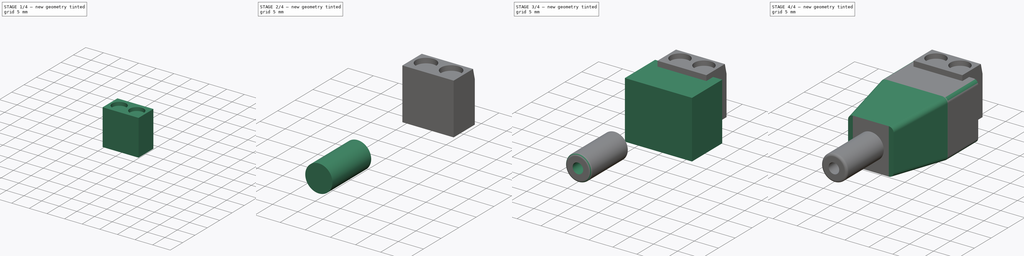
[diagram: build sequence overview — one tinted view per stage of 4, left to right]
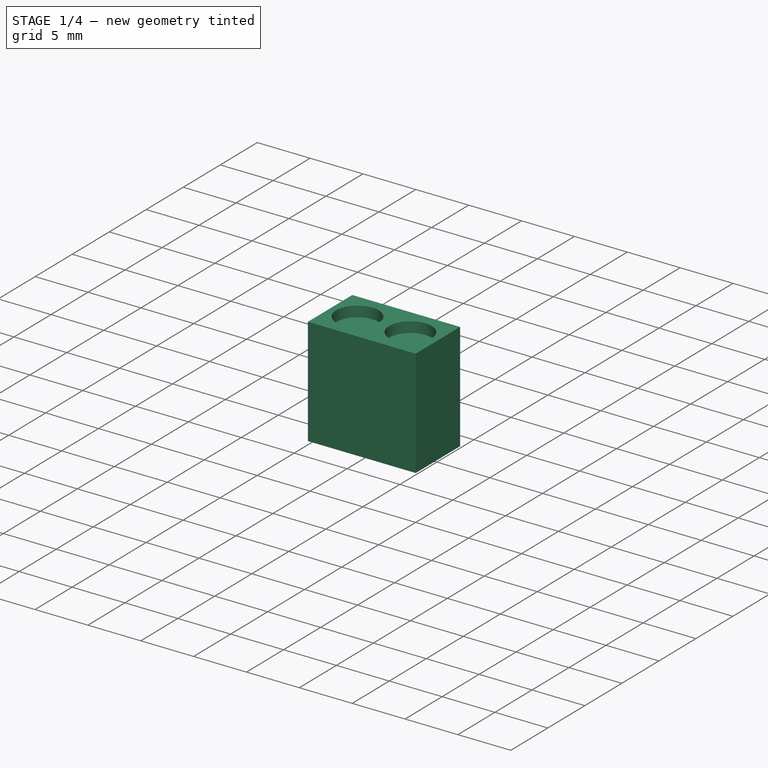
[diagram: stage 1 of 4 — iso view after this stage's code; geometry added in this stage tinted green]
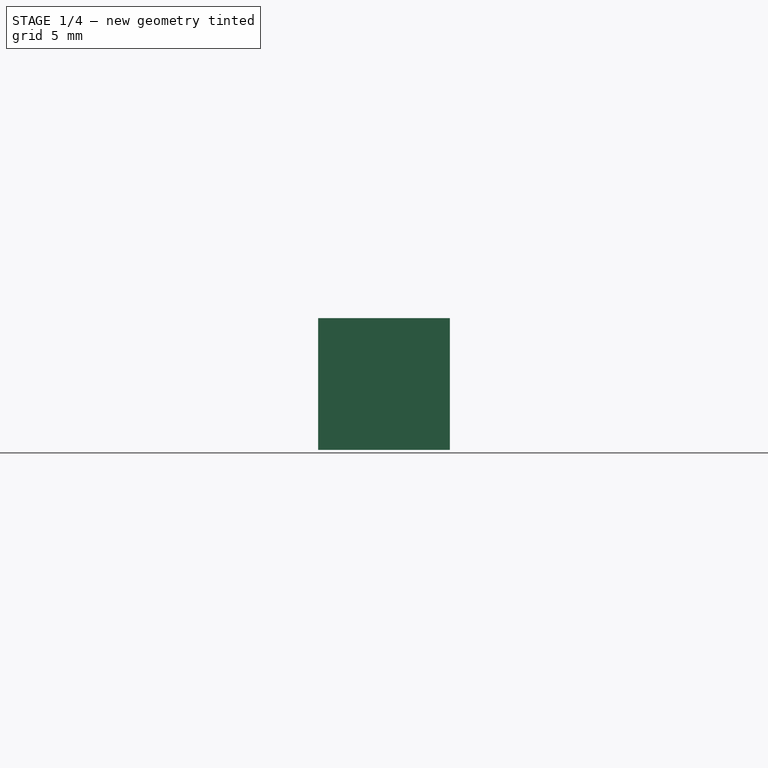
[diagram: stage 1 of 4 — front view after this stage's code; geometry added in this stage tinted green]
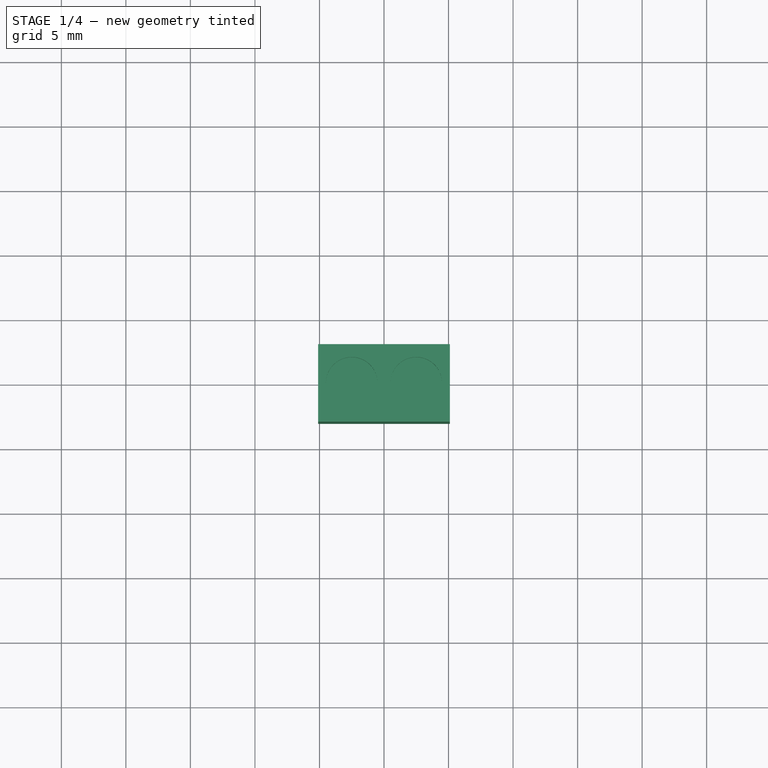
[diagram: stage 1 of 4 — top view after this stage's code; geometry added in this stage tinted green]
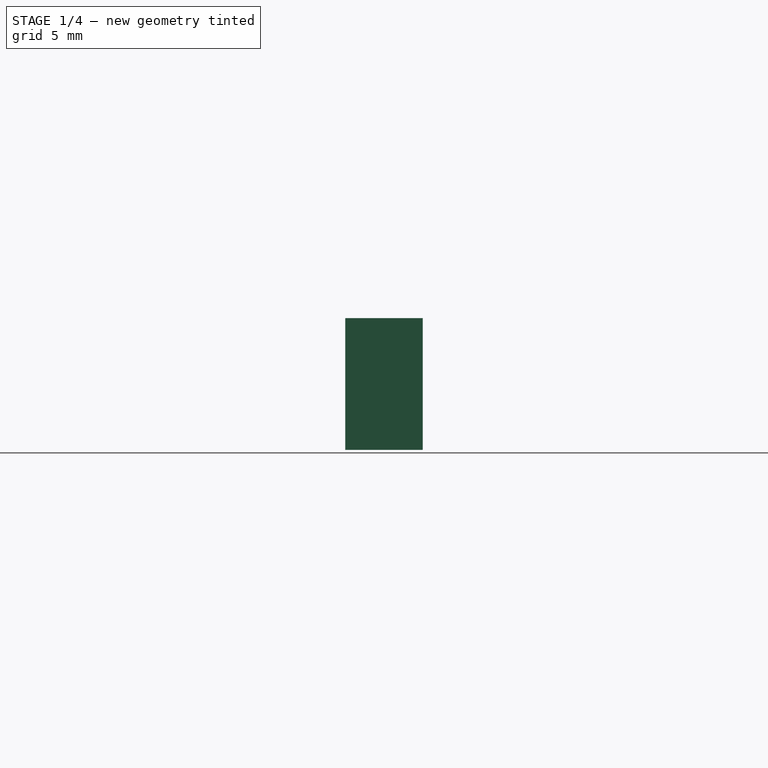
[diagram: stage 1 of 4 — right view after this stage's code; geometry added in this stage tinted green]
FCSTD DOCUMENT  (FreeCAD 0.19R24276 (Git))
Label: Std_PowerConnector
License: All rights reserved
LicenseURL: http://en.wikipedia.org/wiki/All_rights_reserved
objects: Sketcher::SketchObject×8, PartDesign::Pad×3, PartDesign::Body×3, PartDesign::Pocket×3, PartDesign::Fillet×2, PartDesign::ShapeBinder×2, PartDesign::Plane×1, PartDesign::AdditiveLoft×1, PartDesign::Chamfer×1, App::Part×1
note: 34 computed .brp shape members not serialized (recipe doc carries the construction recipe); baked Part::Feature solids carry a one-line shape summary decoded from their .brp

FEATURE [PartDesign::Body] Body001  label="PowerOuter"
  Group = -> [CopyFillet,Sketch003,Pad001,Fillet001,Sketch004,Pocket]
  Origin = -> Origin002
  Tip = -> Pocket
FEATURE [PartDesign::ShapeBinder] CopyFillet001
  Placement = pos=(0,9,-1e-14) rot=(-1,0,0;0rad)
  TraceSupport = false
FEATURE [Sketcher::SketchObject] Sketch005
  FullyConstrained = true
  MapMode = 5
  Placement = pos=(0,9,-1e-14) rot=(0,0.707107,0.707107;3.14159rad)
  Support = -> [CopyFillet001]
  sketch-geometry (5):
    g0: LineSegment StartX=-5.1 StartY=7.1 StartZ=0 EndX=5.1 EndY=7.1 EndZ=0
    g1: LineSegment StartX=5.1 StartY=7.1 StartZ=0 EndX=5.1 EndY=-3.1 EndZ=0
    g2: LineSegment StartX=5.1 StartY=-3.1 StartZ=0 EndX=-5.1 EndY=-3.1 EndZ=0
    g3: LineSegment StartX=-5.1 StartY=-3.1 StartZ=0 EndX=-5.1 EndY=7.1 EndZ=0
    g4: LineSegment StartX=0 StartY=0 StartZ=0 EndX=0 EndY=7.1 EndZ=0
  constraints (14):
    c: Coincident(g0,g1)
    c: Coincident(g1,g2)
    c: Coincident(g2,g3)
    c: Coincident(g3,g0)
    c: Horizontal(g0)
    c: Horizontal(g2)
    c: Vertical(g1)
    c: Vertical(g3)
    c: Coincident(g4,g-1)
    c: Vertical(g4)
    c: Symmetric(g0,g0,g4)
    c: Distance(g0) = 10.2
    c: Distance(g1) = 10.2
    c: DistanceY(g1,g-1) = 3.1
FEATURE [PartDesign::Pad] Pad002
  Direction = (1,1,1)
  Length = 4
  Length2 = 2
  Placement = pos=(0,9,-1e-14) rot=(-1,0,0;0rad)
  Profile = -> Sketch005
  Type = 4
FEATURE [Sketcher::SketchObject] Sketch006
  FullyConstrained = true
  MapMode = 5
  Placement = pos=(0,9,7.1) rot=(1,0,0;0rad)
  Support = -> [Pad002]
  sketch-geometry (4):
    g0: Circle CenterX=-2.5 CenterY=1 CenterZ=0 NormalX=0 NormalY=0 NormalZ=1 AngleXU=0 Radius=2
    g1: Circle CenterX=2.5 CenterY=1 CenterZ=0 NormalX=0 NormalY=0 NormalZ=1 AngleXU=0 Radius=2
    g2: LineSegment StartX=-2.5 StartY=1 StartZ=0 EndX=2.5 EndY=1 EndZ=0
    g3: LineSegment StartX=0 StartY=0 StartZ=0 EndX=0 EndY=1 EndZ=0
  constraints (10):
    c: Equal(g0,g1)
    c: Diameter(g0) = 4
    c: Coincident(g2,g0)
    c: Coincident(g2,g1)
    c: Horizontal(g2)
    c: Distance(g2) = 5
    c: Coincident(g3,g-1)
    c: PointOnObject(g3,g-2)
    c: Symmetric(g0,g1,g3)
    c: Distance(g3) = 1
FEATURE [PartDesign::Pocket] Pocket001
  BaseFeature = -> Pad002
  Length = 1
  Length2 = 100
  Placement = pos=(0,9,-1e-14) rot=(-1,0,0;0rad)
  Profile = -> Sketch006
  Type = 0
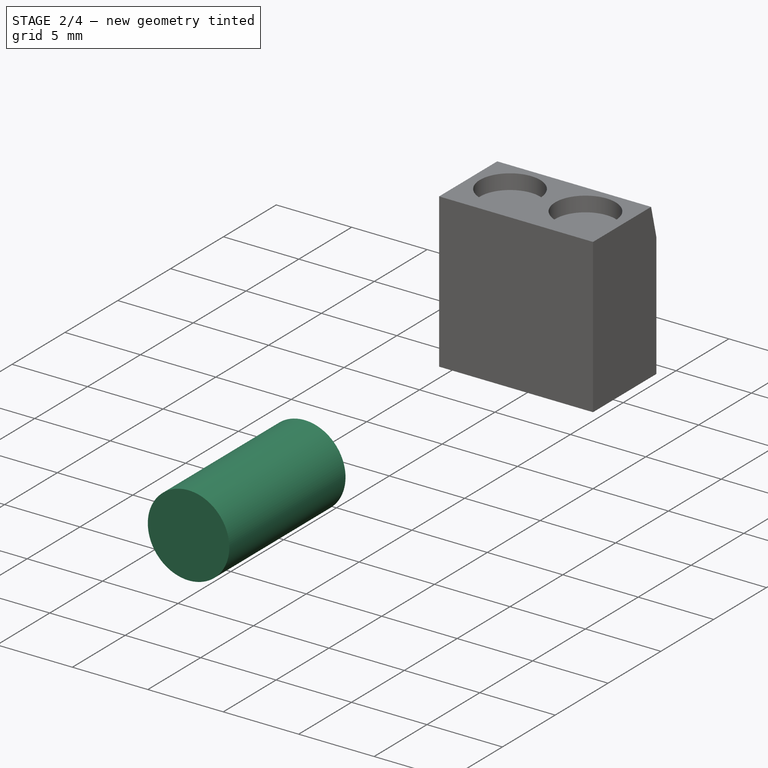
[diagram: stage 2 of 4 — iso view after this stage's code; geometry added in this stage tinted green]
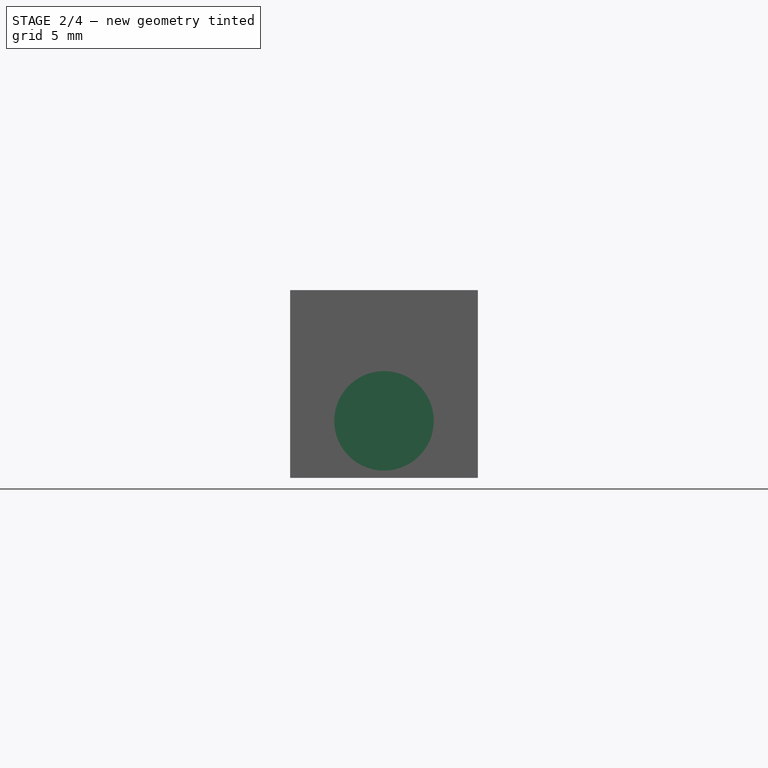
[diagram: stage 2 of 4 — front view after this stage's code; geometry added in this stage tinted green]
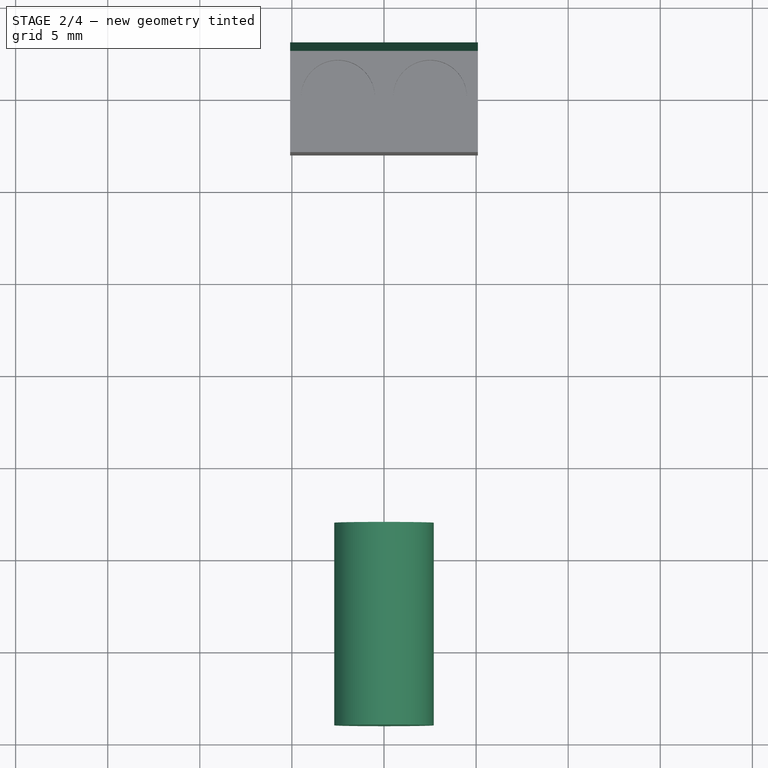
[diagram: stage 2 of 4 — top view after this stage's code; geometry added in this stage tinted green]
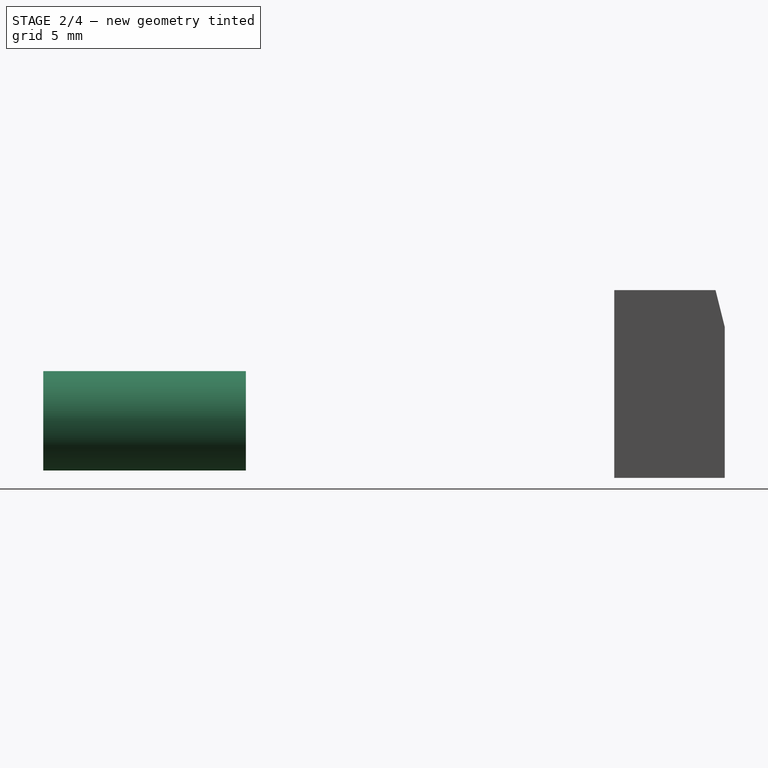
[diagram: stage 2 of 4 — right view after this stage's code; geometry added in this stage tinted green]
FEATURE [PartDesign::Body] Body  label="Shell"
  Group = -> [Sketch,Pad,DatumPlane,Sketch001,Sketch002,AdditiveLoft,Fillet]
  Origin = -> Origin001
  Tip = -> Fillet
FEATURE [PartDesign::ShapeBinder] CopyFillet
  Placement = pos=(0,0,0) rot=(1,0,0;1.5708rad)
  TraceSupport = false
FEATURE [Sketcher::SketchObject] Sketch003
  FullyConstrained = true
  MapMode = 5
  Placement = pos=(0,-13,1.06e-14) rot=(1,0,0;1.5708rad)
  Support = -> [CopyFillet]
  sketch-geometry (1):
    g0: Circle CenterX=0 CenterY=0 CenterZ=0 NormalX=0 NormalY=0 NormalZ=1 AngleXU=0 Radius=2.7
  constraints (2):
    c: Coincident(g0,g-1)
    c: Diameter(g0) = 5.4
FEATURE [PartDesign::Pad] Pad001
  Direction = (1,1,1)
  Length = 11
  Length2 = 100
  Placement = pos=(0,0,0) rot=(1,0,0;1.5708rad)
  Profile = -> Sketch003
  Type = 0
FEATURE [PartDesign::Chamfer] Chamfer
  Angle = 45
  Base = -> Pocket001 [Edge3]
  BaseFeature = -> Pocket001
  ChamferType = 1
  FlipDirection = false
  Placement = pos=(0,9,-1e-14) rot=(-1,0,0;0rad)
  Size = 0.5
  Size2 = 2
  SupportTransform = false
FEATURE [Sketcher::SketchObject] Sketch007
  FullyConstrained = true
  MapMode = 5
  Placement = pos=(0,13,2.38419e-07) rot=(0,0.707107,0.707107;3.14159rad)
  Support = -> [Chamfer]
  sketch-geometry (9):
    g0: LineSegment StartX=-0.5 StartY=0 StartZ=0 EndX=0.5 EndY=0 EndZ=0
    g1: LineSegment StartX=-4.8 StartY=2.5 StartZ=0 EndX=-0.5 EndY=2.5 EndZ=0
    g2: LineSegment StartX=-0.5 StartY=2.5 StartZ=0 EndX=-0.5 EndY=-2.5 EndZ=0
    g3: LineSegment StartX=-0.5 StartY=-2.5 StartZ=0 EndX=-4.8 EndY=-2.5 EndZ=0
    g4: LineSegment StartX=-4.8 StartY=-2.5 StartZ=0 EndX=-4.8 EndY=2.5 EndZ=0
    g5: LineSegment StartX=4.8 StartY=-2.5 StartZ=0 EndX=0.5 EndY=-2.5 EndZ=0
    g6: LineSegment StartX=0.5 StartY=-2.5 StartZ=0 EndX=0.5 EndY=2.5 EndZ=0
    g7: LineSegment StartX=0.5 StartY=2.5 StartZ=0 EndX=4.8 EndY=2.5 EndZ=0
    g8: LineSegment StartX=4.8 StartY=2.5 StartZ=0 EndX=4.8 EndY=-2.5 EndZ=0
  constraints (25):
    c: Coincident(g1,g2)
    c: Coincident(g2,g3)
    c: Coincident(g3,g4)
    c: Coincident(g4,g1)
    c: Horizontal(g1)
    c: Horizontal(g3)
    c: Vertical(g2)
    c: Vertical(g4)
    c: Coincident(g5,g6)
    c: Coincident(g6,g7)
    c: Coincident(g7,g8)
    c: Coincident(g8,g5)
    c: Horizontal(g5)
    c: Horizontal(g7)
    c: Vertical(g6)
    c: Vertical(g8)
    c: Symmetric(g2,g1,g0)
    c: Symmetric(g5,g6,g0)
    c: Equal(g1,g7)
    c: Equal(g8,g4)
    c: Symmetric(g0,g0,g-1)
    c: Distance(g0) = 1
    c: Distance(g8) = 5
    c: Horizontal(g0)
    c: Distance(g7) = 4.3
FEATURE [PartDesign::Pocket] Pocket002
  BaseFeature = -> Chamfer
  Length = 5
  Length2 = 100
  Placement = pos=(0,9,-1e-14) rot=(-1,0,0;0rad)
  Profile = -> Sketch007
  Type = 0
FEATURE [PartDesign::Body] Body002  label="PowerHeader"
  Group = -> [CopyFillet001,Sketch005,Pad002,Sketch006,Pocket001,Chamfer,Sketch007,Pocket002]
  Origin = -> Origin003
  Tip = -> Pocket002
FEATURE [App::Part] Part  label="PowerConnector"
  Group = -> [Body,Body001,Body002]
  Origin = -> Origin
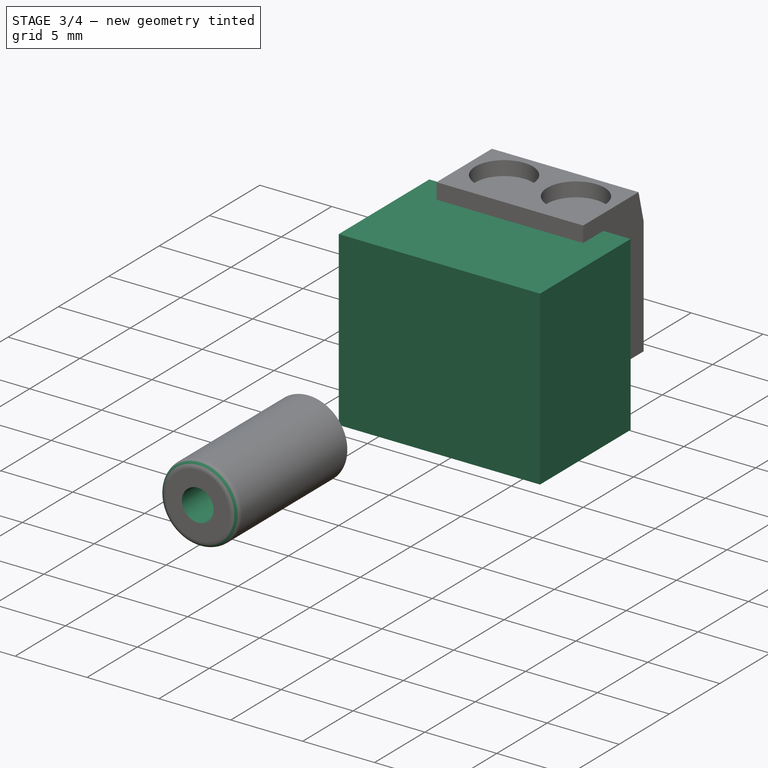
[diagram: stage 3 of 4 — iso view after this stage's code; geometry added in this stage tinted green]
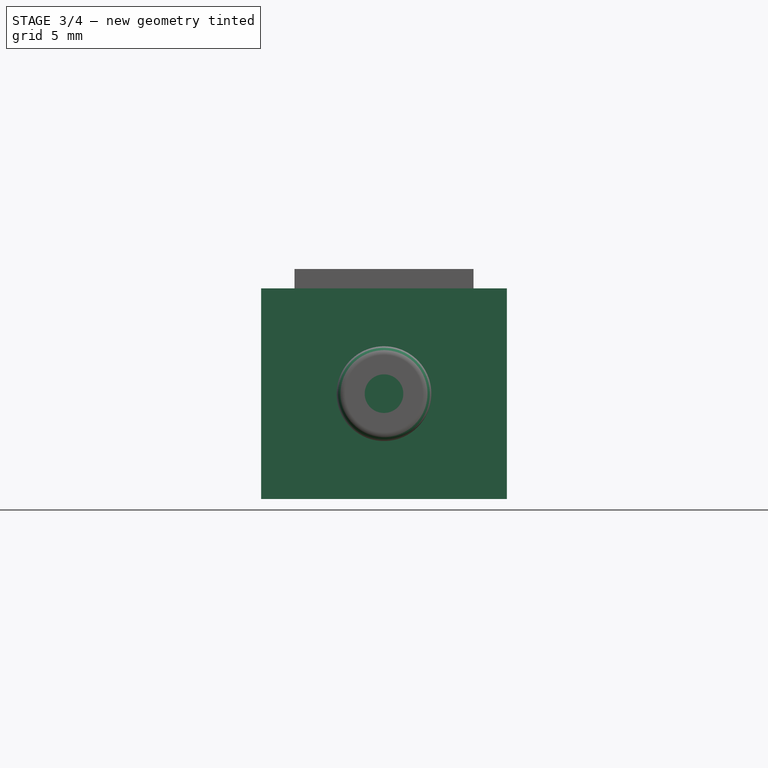
[diagram: stage 3 of 4 — front view after this stage's code; geometry added in this stage tinted green]
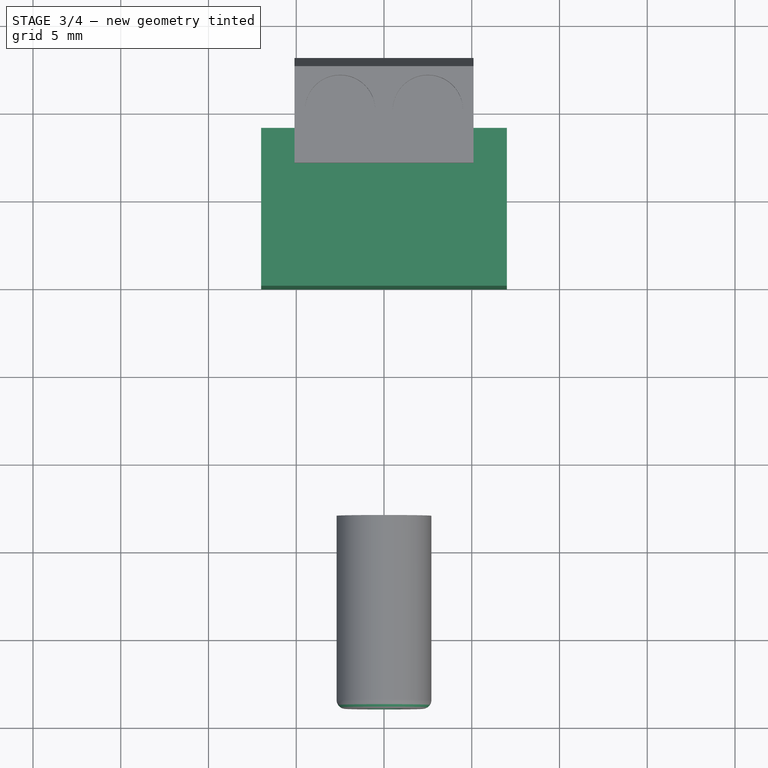
[diagram: stage 3 of 4 — top view after this stage's code; geometry added in this stage tinted green]
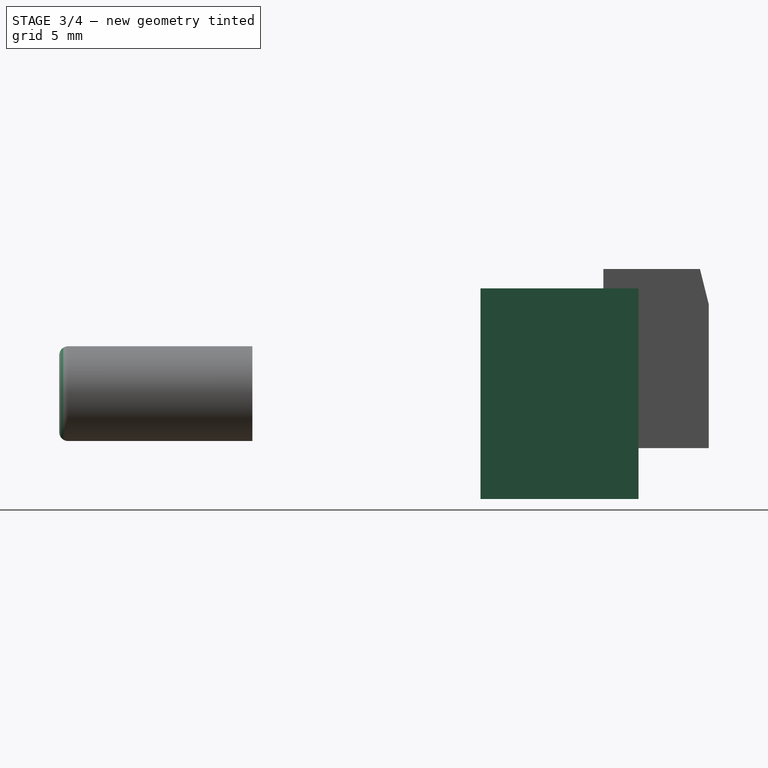
[diagram: stage 3 of 4 — right view after this stage's code; geometry added in this stage tinted green]
FEATURE [Sketcher::SketchObject] Sketch
  FullyConstrained = true
  MapMode = 5
  Placement = pos=(0,0,0) rot=(1,0,0;1.5708rad)
  Support = -> [XZ_Plane001]
  sketch-geometry (6):
    g0: LineSegment StartX=-7 StartY=6 StartZ=0 EndX=7 EndY=6 EndZ=0
    g1: LineSegment StartX=7 StartY=6 StartZ=0 EndX=7 EndY=-6 EndZ=0
    g2: LineSegment StartX=7 StartY=-6 StartZ=0 EndX=-7 EndY=-6 EndZ=0
    g3: LineSegment StartX=-7 StartY=-6 StartZ=0 EndX=-7 EndY=6 EndZ=0
    g4: LineSegment StartX=0 StartY=0 StartZ=0 EndX=0 EndY=6 EndZ=0
    g5: LineSegment StartX=0 StartY=0 StartZ=0 EndX=7 EndY=-8e-16 EndZ=0
  constraints (16):
    c: Coincident(g0,g1)
    c: Coincident(g1,g2)
    c: Coincident(g2,g3)
    c: Coincident(g3,g0)
    c: Horizontal(g0)
    c: Horizontal(g2)
    c: Vertical(g1)
    c: Vertical(g3)
    c: Coincident(g4,g-1)
    c: PointOnObject(g4,g-2)
    c: Coincident(g5,g-1)
    c: PointOnObject(g5,g-1)
    c: Symmetric(g0,g0,g4)
    c: Symmetric(g0,g1,g5)
    c: Distance(g0) = 14
    c: Distance(g1) = 12
FEATURE [PartDesign::Pad] Pad
  Direction = (1,1,1)
  Length = 9
  Length2 = 100
  Placement = pos=(0,0,0) rot=(1,0,0;1.5708rad)
  Profile = -> Sketch
  Reversed = true
  Type = 0
FEATURE [PartDesign::Fillet] Fillet001
  Base = -> Pad001 [Edge3]
  BaseFeature = -> Pad001
  Placement = pos=(0,0,0) rot=(1,0,0;1.5708rad)
  Radius = 0.5
  SupportTransform = false
FEATURE [Sketcher::SketchObject] Sketch004
  FullyConstrained = true
  MapMode = 5
  Placement = pos=(0,-24,2.62e-14) rot=(1,0,0;1.5708rad)
  Support = -> [Fillet001]
  sketch-geometry (1):
    g0: Circle CenterX=0 CenterY=0 CenterZ=0 NormalX=0 NormalY=0 NormalZ=1 AngleXU=0 Radius=1.1
  constraints (2):
    c: Coincident(g0,g-1)
    c: Diameter(g0) = 2.2
FEATURE [PartDesign::Pocket] Pocket
  BaseFeature = -> Fillet001
  Length = 11
  Length2 = 100
  Placement = pos=(0,0,0) rot=(1,0,0;1.5708rad)
  Profile = -> Sketch004
  Type = 0
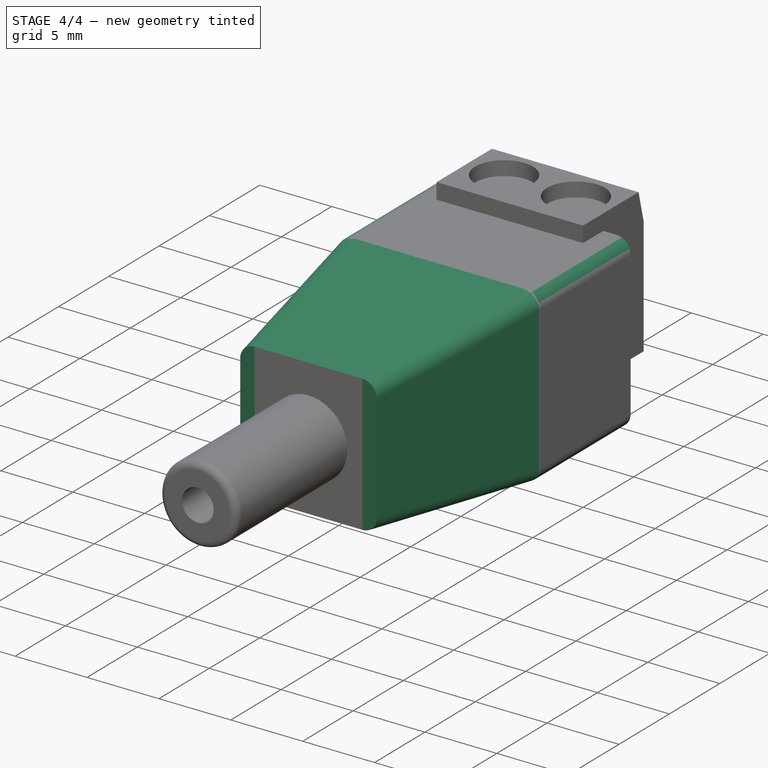
[diagram: stage 4 of 4 — iso view after this stage's code; geometry added in this stage tinted green]
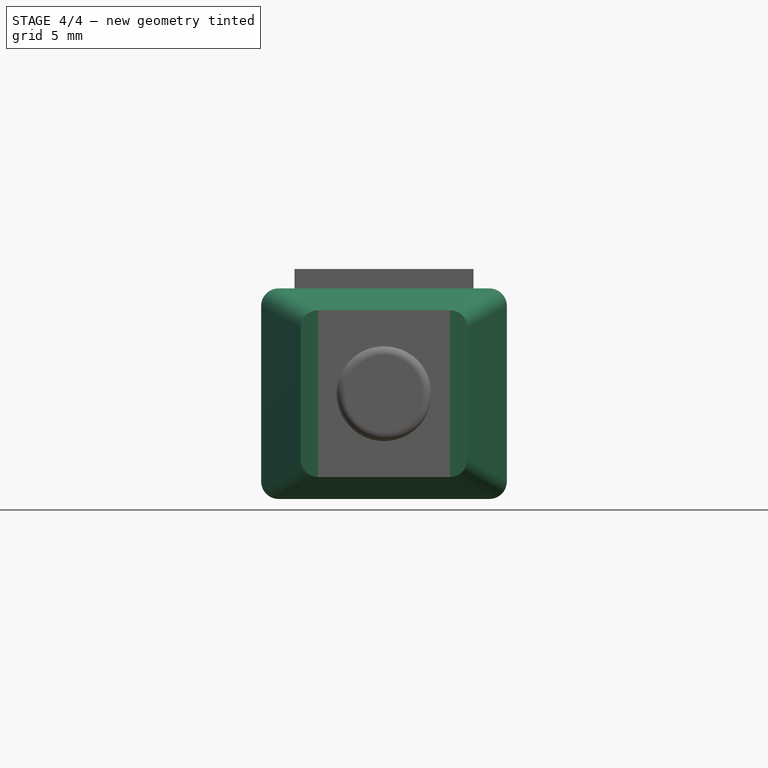
[diagram: stage 4 of 4 — front view after this stage's code; geometry added in this stage tinted green]
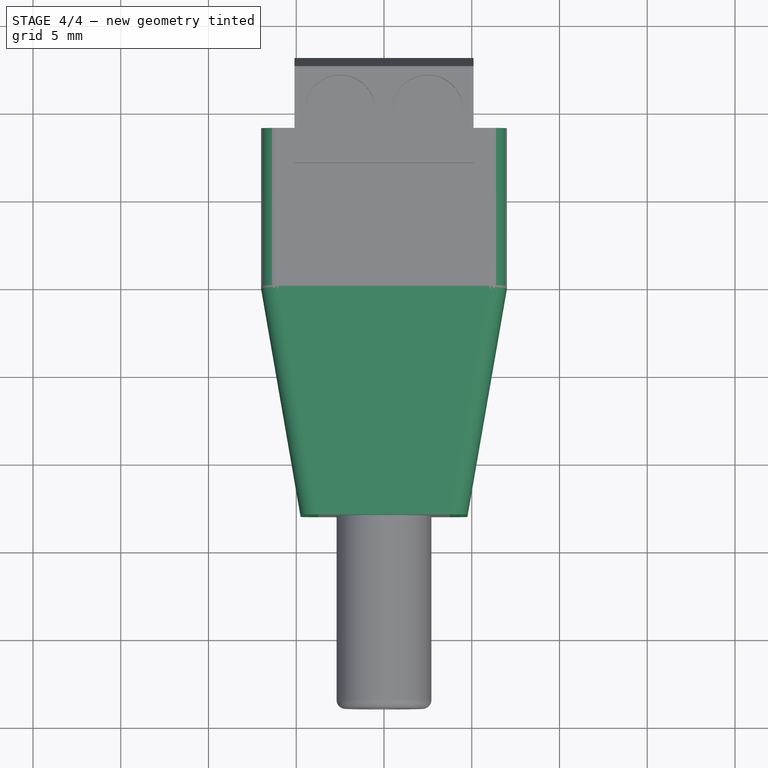
[diagram: stage 4 of 4 — top view after this stage's code; geometry added in this stage tinted green]
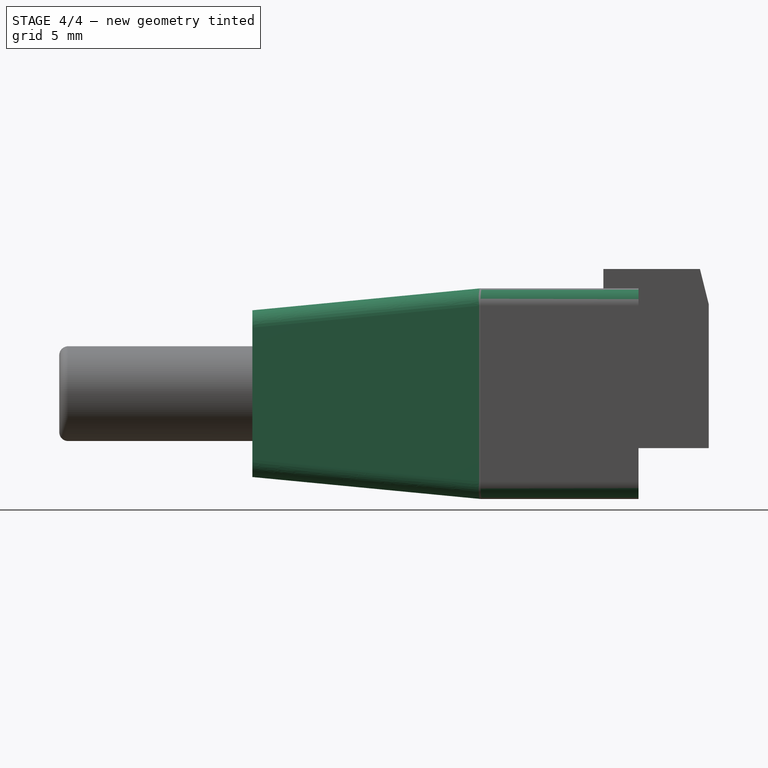
[diagram: stage 4 of 4 — right view after this stage's code; geometry added in this stage tinted green]
FEATURE [PartDesign::Plane] DatumPlane
  AttachmentOffset = pos=(0,0,13) rot=(0,0,1;0rad)
  Length = 60
  MapMode = 5
  Placement = pos=(0,-13,2.9e-15) rot=(1,0,0;1.5708rad)
  ResizeMode = 0
  Support = -> [XZ_Plane001]
  Width = 60
FEATURE [Sketcher::SketchObject] Sketch001
  FullyConstrained = true
  MapMode = 5
  Placement = pos=(0,-13,2.9e-15) rot=(1,0,0;1.5708rad)
  Support = -> [DatumPlane]
  sketch-geometry (6):
    g0: LineSegment StartX=-4.75 StartY=4.75 StartZ=0 EndX=4.75 EndY=4.75 EndZ=0
    g1: LineSegment StartX=4.75 StartY=4.75 StartZ=0 EndX=4.75 EndY=-4.75 EndZ=0
    g2: LineSegment StartX=4.75 StartY=-4.75 StartZ=0 EndX=-4.75 EndY=-4.75 EndZ=0
    g3: LineSegment StartX=-4.75 StartY=-4.75 StartZ=0 EndX=-4.75 EndY=4.75 EndZ=0
    g4: LineSegment StartX=0 StartY=0 StartZ=0 EndX=0 EndY=4.75 EndZ=0
    g5: LineSegment StartX=0 StartY=0 StartZ=0 EndX=4.75 EndY=0 EndZ=0
  constraints (16):
    c: Coincident(g0,g1)
    c: Coincident(g1,g2)
    c: Coincident(g2,g3)
    c: Coincident(g3,g0)
    c: Horizontal(g0)
    c: Horizontal(g2)
    c: Vertical(g1)
    c: Vertical(g3)
    c: Coincident(g4,g-1)
    c: PointOnObject(g4,g-2)
    c: Coincident(g5,g-1)
    c: PointOnObject(g5,g-1)
    c: Symmetric(g0,g0,g4)
    c: Symmetric(g0,g1,g5)
    c: Distance(g0) = 9.5
    c: Distance(g1) = 9.5
FEATURE [Sketcher::SketchObject] Sketch002
  FullyConstrained = false
  MapMode = 5
  Placement = pos=(0,0,0) rot=(1,0,0;1.5708rad)
  Support = -> [Pad]
  sketch-geometry (6):
    g0: LineSegment StartX=0 StartY=0 StartZ=0 EndX=0 EndY=6 EndZ=0
    g1: LineSegment StartX=-0.391357 StartY=0 StartZ=0 EndX=7 EndY=-2e-16 EndZ=0
    g2: LineSegment StartX=-7 StartY=6 StartZ=0 EndX=7 EndY=6 EndZ=0
    g3: LineSegment StartX=7 StartY=6 StartZ=0 EndX=7 EndY=-6 EndZ=0
    g4: LineSegment StartX=7 StartY=-6 StartZ=0 EndX=-7 EndY=-6 EndZ=0
    g5: LineSegment StartX=-7 StartY=-6 StartZ=0 EndX=-7 EndY=6 EndZ=0
  constraints (16):
    c: Coincident(g0,g-1)
    c: PointOnObject(g0,g-2)
    c: PointOnObject(g1,g-1)
    c: PointOnObject(g1,g-1)
    c: Coincident(g2,g3)
    c: Coincident(g3,g4)
    c: Coincident(g4,g5)
    c: Coincident(g5,g2)
    c: Horizontal(g2)
    c: Horizontal(g4)
    c: Vertical(g3)
    c: Vertical(g5)
    c: Symmetric(g2,g2,g0)
    c: Symmetric(g2,g3,g1)
    c: Distance(g2) = 14
    c: Distance(g3) = 12
FEATURE [PartDesign::AdditiveLoft] AdditiveLoft
  BaseFeature = -> Pad
  Closed = false
  Placement = pos=(0,0,0) rot=(1,0,0;1.5708rad)
  Profile = -> Sketch002
  Ruled = false
  Sections = -> [Sketch001]
FEATURE [PartDesign::Fillet] Fillet
  Base = -> AdditiveLoft [Edge5,Edge17,Edge13,Edge1,Edge8,Edge18,Edge2,Edge11]
  BaseFeature = -> AdditiveLoft
  Placement = pos=(0,0,0) rot=(1,0,0;1.5708rad)
  Radius = 1
  SupportTransform = false
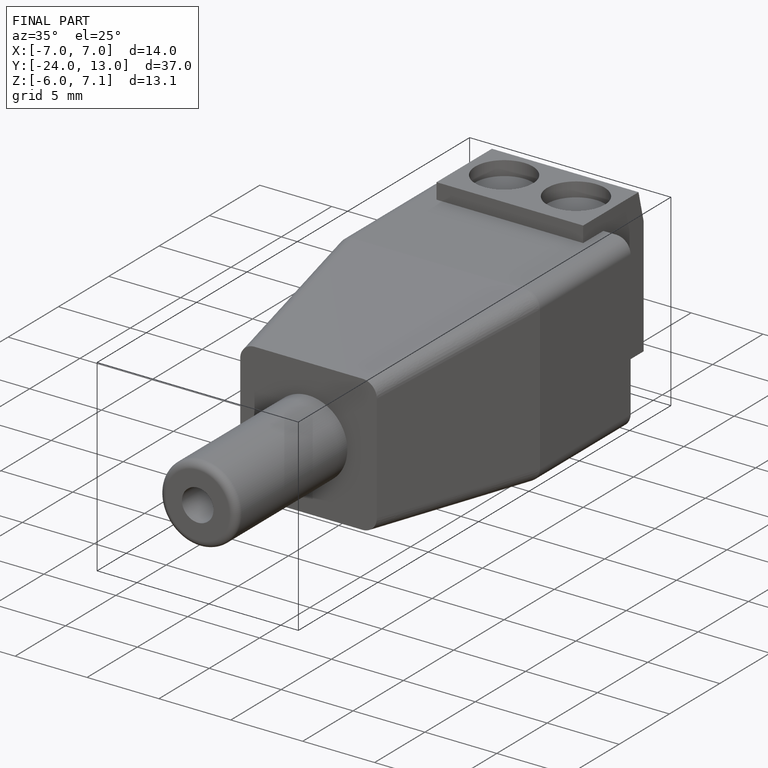
[diagram: finished part — iso view with bounding-box wireframe]
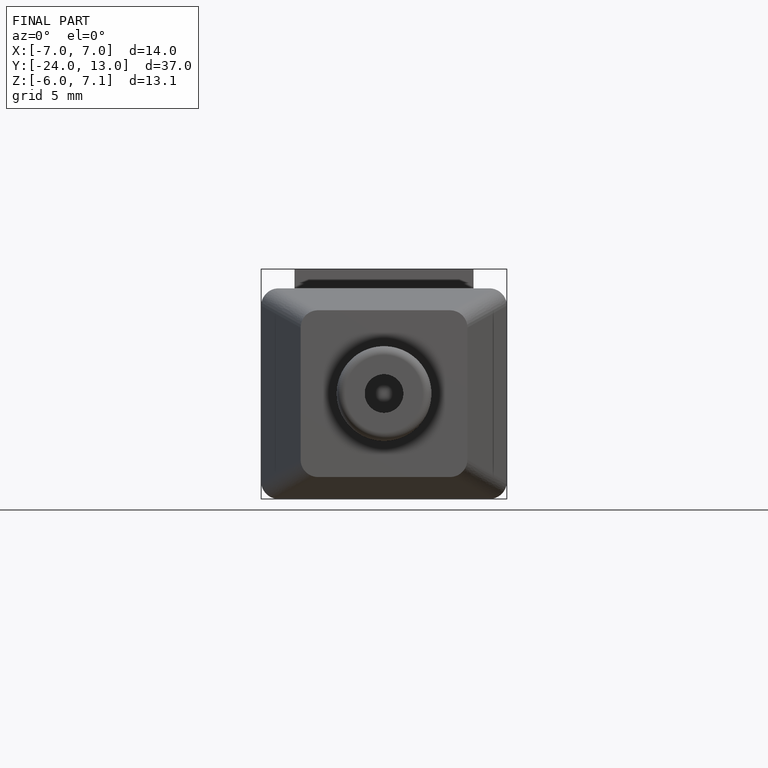
[diagram: finished part — front view with bounding-box wireframe]
